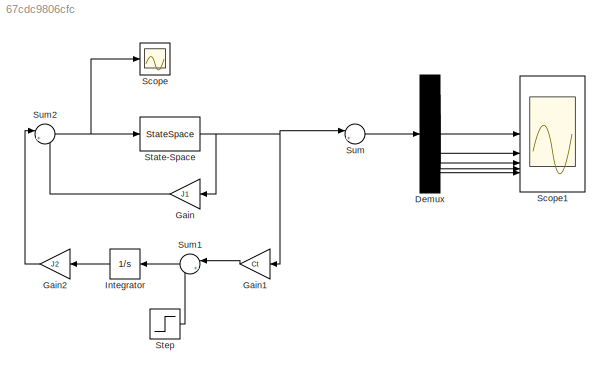
MODEL slx_67cdc9806cfc
KIND model
CONFIG AbsTol = auto
CONFIG EnableMultiTasking = off
CONFIG FixedStep = auto
CONFIG MaxStep = auto
CONFIG MinStep = auto
CONFIG RelTol = 1e-3
CONFIG SampleTimeConstraint = Unconstrained
CONFIG SolverName = VariableStepAuto
CONFIG StartTime = 0.0
CONFIG StopTime = 10.0
BLOCK [Demux] Demux
  Outputs = 5
BLOCK [Gain] Gain
  Gain = J1
  Multiplication = Matrix(K*u)
  NameLocation = top
BLOCK [Gain] Gain1
  Gain = Ct
  Multiplication = Matrix(K*u)
  NameLocation = top
BLOCK [Gain] Gain2
  Gain = J2
  Multiplication = Matrix(K*u)
  NameLocation = top
BLOCK [Integrator] Integrator
  NameLocation = top
BLOCK [Scope] Scope
  Floating = off
  NumInputPorts = 1
  ScopeSpecificationString = Simulink.scopes.TimeScopeBlockCfg('CurrentConfiguration', extmgr.ConfigurationSet(extmgr.Configuration('Core','General UI',true),extmgr.Configuration('Core','Source UI',true),extmgr.Configuration('Sources','WiredSimulink',true),extmgr.Configuration('Visuals','Time Domain',true,'SerializedDisplays',{struct('MinYLimReal','-0.16064','MaxYLimReal','1.08512','YLabelReal','','MinYLimMag','0.00000','MaxY...<+1423ch>
BLOCK [Scope] Scope1
  Floating = off
  NumInputPorts = 5
  ScopeSpecificationString = Simulink.scopes.TimeScopeBlockCfg('CurrentConfiguration', extmgr.ConfigurationSet(extmgr.Configuration('Core','General UI',true),extmgr.Configuration('Core','Source UI',true),extmgr.Configuration('Sources','WiredSimulink',true,'DataLoggingVariableName','ScopeData1'),extmgr.Configuration('Visuals','Time Domain',true,'SerializedDisplays',{struct('MinYLimReal','-1.14717','MaxYLimReal','0.32452','YLab...<+5328ch>
BLOCK [StateSpace] State-Space
  A = A
  B = B
  C = C
  D = D
  InitialCondition = [-1;0;0;0;0]
  ParameterTunability = Unconstrained
BLOCK [Step] Step
  SampleTime = 0
  Time = 5
BLOCK [Sum] Sum
  Inputs = |+-
BLOCK [Sum] Sum1
  Inputs = |+-
  NameLocation = top
BLOCK [Sum] Sum2
  Inputs = |+-
LINE Demux:1 -> Scope1:1
LINE Demux:2 -> Scope1:2
LINE Demux:3 -> Scope1:3
LINE Demux:4 -> Scope1:4
LINE Demux:5 -> Scope1:5
LINE Gain1:1 -> Sum1:1
LINE Gain2:1 -> Sum2:1
LINE Gain:1 -> Sum2:2
LINE Integrator:1 -> Gain2:1
NET State-Space:1 -> Gain1:1, Gain:1, Sum:1
LINE Step:1 -> Sum1:2
LINE Sum1:1 -> Integrator:1
NET Sum2:1 -> Scope:1, State-Space:1
LINE Sum:1 -> Demux:1
note: NET lines group one-source signal fan-out (src -> all destinations, sorted); 1:1 wires keep LINE
